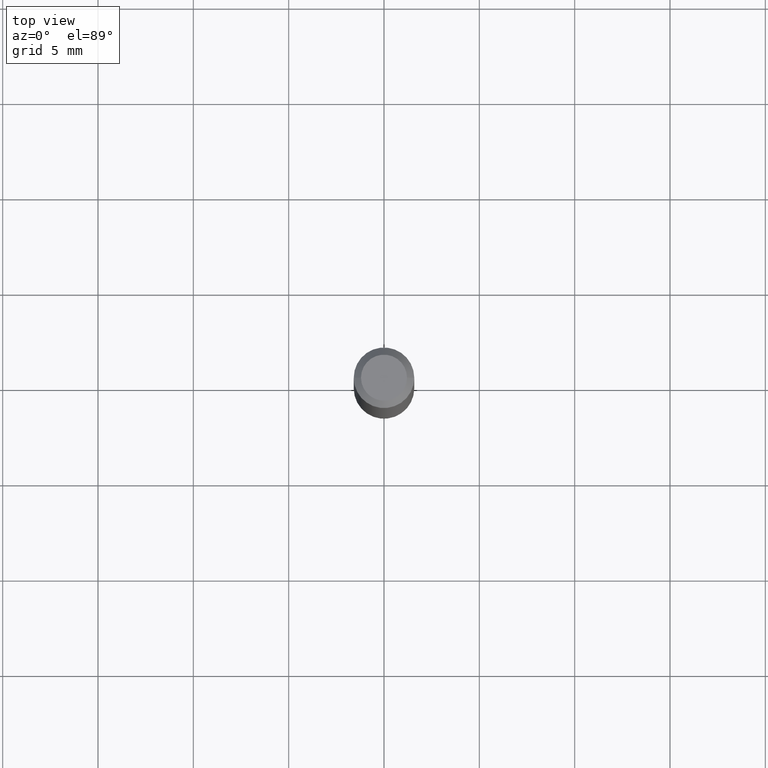
[diagram: clean part render]
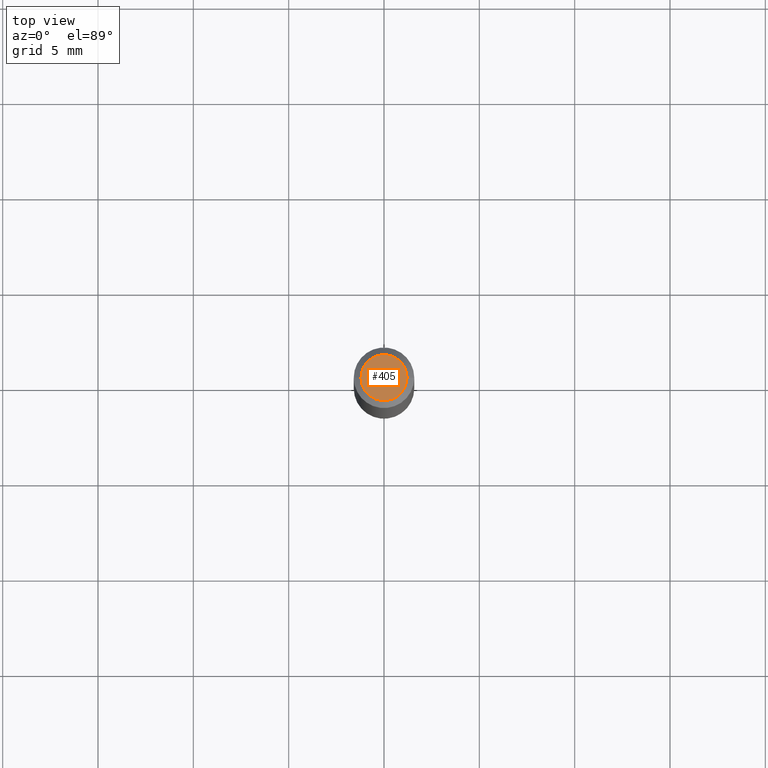
[diagram: same view with one face highlighted and labeled with its STEP entity id]
A machine part, top view. The second image highlights one B-rep face of the part: STEP entity #405.
In plain terms, the highlighted planar face has unit normal (0, -0, -1).
Its self-contained STEP definition (entity closure, byte-faithful):
#6 = CARTESIAN_POINT ( 'NONE',  ( 0.04750000000000000749, -4.035134999187568762E-16, 2.731847993664288856E-16 ) ) ;
#18 = CARTESIAN_POINT ( 'NONE',  ( -6.680649051745406845E-45, 9.538196290434862081E-31, 2.731847993664263218E-16 ) ) ;
#30 = FACE_OUTER_BOUND ( 'NONE', #254, .T. ) ;
#50 = DIRECTION ( 'NONE',  ( 1.000000000000000000, -6.982962677686266711E-15, 4.852736867747365086E-29 ) ) ;
#71 = CIRCLE ( 'NONE', #351, 0.04750000000000000749 ) ;
#99 = VERTEX_POINT ( 'NONE', #6 ) ;
#118 = ORIENTED_EDGE ( 'NONE', *, *, #335, .T. ) ;
#142 = AXIS2_PLACEMENT_3D ( 'NONE', #466, #502, #145 ) ;
#145 = DIRECTION ( 'NONE',  ( -1.000000000000000000, 6.982962677686265922E-15, -4.876176775795935793E-29 ) ) ;
#157 = PLANE ( 'NONE',  #142 ) ;
#169 = CARTESIAN_POINT ( 'NONE',  ( -6.680649051745406845E-45, 9.538196290434862081E-31, 2.731847993664263218E-16 ) ) ;
#181 = AXIS2_PLACEMENT_3D ( 'NONE', #169, #313, #413 ) ;
#189 = EDGE_CURVE ( 'NONE', #99, #267, #480, .T. ) ;
#254 = EDGE_LOOP ( 'NONE', ( #118, #459 ) ) ;
#267 = VERTEX_POINT ( 'NONE', #461 ) ;
#313 = DIRECTION ( 'NONE',  ( -2.445468806185136597E-29, 3.491481338843145583E-15, 1.000000000000000000 ) ) ;
#335 = EDGE_CURVE ( 'NONE', #267, #99, #71, .T. ) ;
#351 = AXIS2_PLACEMENT_3D ( 'NONE', #18, #365, #50 ) ;
#365 = DIRECTION ( 'NONE',  ( -2.445468806185136597E-29, 3.491481338843145583E-15, 1.000000000000000000 ) ) ;
#405 = ADVANCED_FACE ( 'NONE', ( #30 ), #157, .F. ) ;
#413 = DIRECTION ( 'NONE',  ( 1.000000000000000000, -6.982962677686266711E-15, 4.852736867747365086E-29 ) ) ;
#459 = ORIENTED_EDGE ( 'NONE', *, *, #189, .T. ) ;
#461 = CARTESIAN_POINT ( 'NONE',  ( -0.04750000000000000749, 3.578768372314221353E-16, 2.731847993664239060E-16 ) ) ;
#466 = CARTESIAN_POINT ( 'NONE',  ( 3.316907271900976589E-16, 0.04750000000000000749, -2.925296391183627249E-17 ) ) ;
#480 = CIRCLE ( 'NONE', #181, 0.04750000000000000749 ) ;
#502 = DIRECTION ( 'NONE',  ( 2.438088387897960049E-29, -3.491481338843145188E-15, -1.000000000000000000 ) ) ;